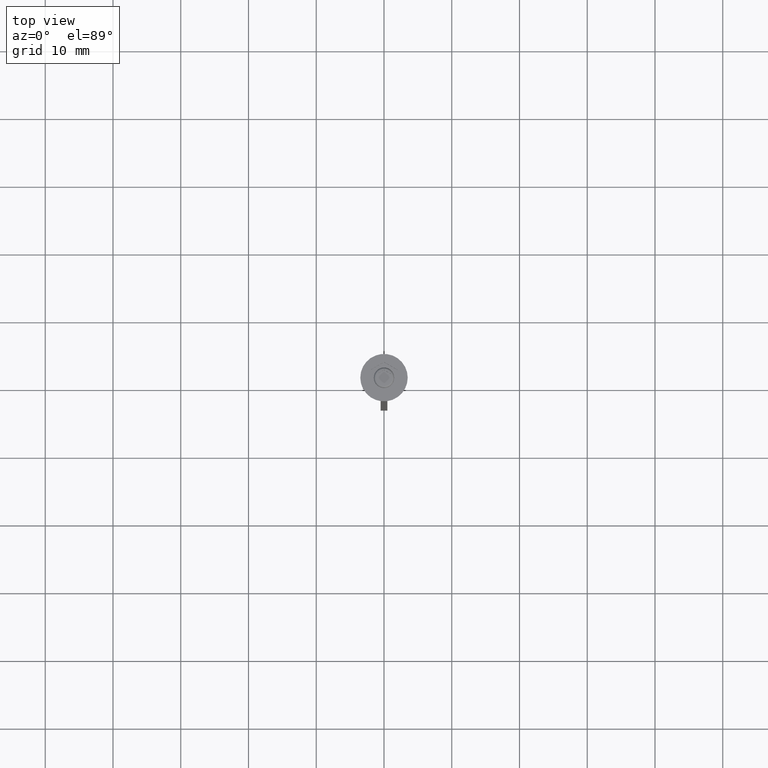
[diagram: clean part render]
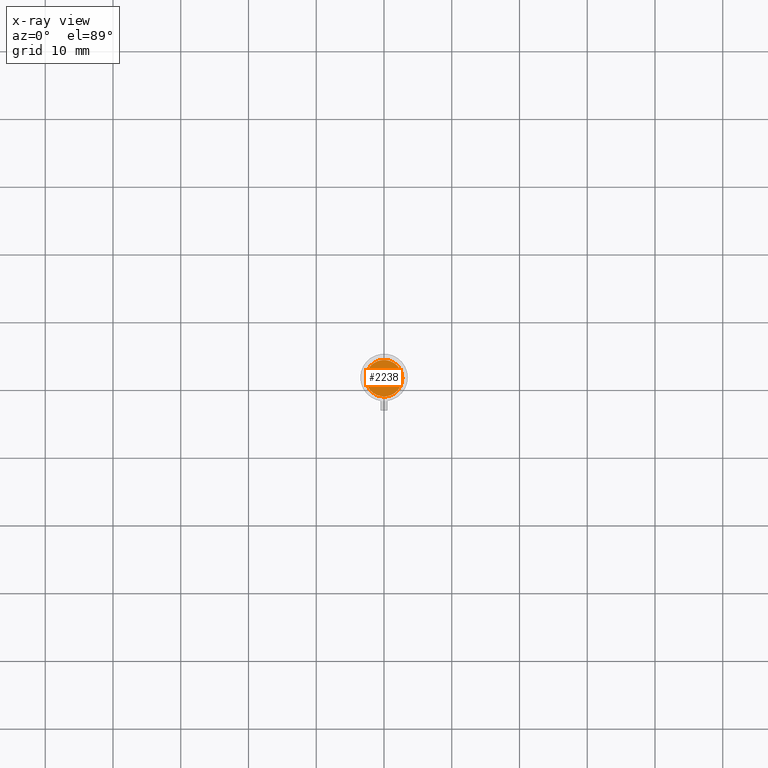
[diagram: x-ray — body ghosted, one internal face saturated and labeled with its STEP entity id]
A machine part, top view, then the same camera in x-ray: the body is ghosted and one INTERNAL B-rep face — a face not visible from any outside direction — is saturated and labeled: STEP entity #2238.
In plain terms, the highlighted planar face has unit normal (0, 0, -1).
Its self-contained STEP definition (entity closure, byte-faithful):
#356 = AXIS2_PLACEMENT_3D ( 'NONE', #655, #466, #1387 ) ;
#413 = DIRECTION ( 'NONE',  ( -1.000000000000000000, 0.000000000000000000, 0.000000000000000000 ) ) ;
#436 = EDGE_LOOP ( 'NONE', ( #1623, #694 ) ) ;
#466 = DIRECTION ( 'NONE',  ( -0.000000000000000000, -0.000000000000000000, 1.000000000000000000 ) ) ;
#544 = CIRCLE ( 'NONE', #356, 2.700000000000002398 ) ;
#607 = DIRECTION ( 'NONE',  ( 0.000000000000000000, 0.000000000000000000, -1.000000000000000000 ) ) ;
#655 = CARTESIAN_POINT ( 'NONE',  ( 0.000000000000000000, 0.000000000000000000, -5.500000000000000000 ) ) ;
#657 = VERTEX_POINT ( 'NONE', #1957 ) ;
#694 = ORIENTED_EDGE ( 'NONE', *, *, #1503, .T. ) ;
#761 = VERTEX_POINT ( 'NONE', #1296 ) ;
#1004 = CARTESIAN_POINT ( 'NONE',  ( 0.000000000000000000, 0.000000000000000000, -5.500000000000000000 ) ) ;
#1284 = CARTESIAN_POINT ( 'NONE',  ( 0.000000000000000000, 0.000000000000000000, -5.500000000000000000 ) ) ;
#1296 = CARTESIAN_POINT ( 'NONE',  ( -2.700000000000002398, 0.000000000000000000, -5.500000000000000000 ) ) ;
#1315 = DIRECTION ( 'NONE',  ( -0.000000000000000000, -0.000000000000000000, 1.000000000000000000 ) ) ;
#1318 = EDGE_CURVE ( 'NONE', #761, #657, #544, .T. ) ;
#1339 = DIRECTION ( 'NONE',  ( -1.000000000000000000, 0.000000000000000000, -0.000000000000000000 ) ) ;
#1382 = AXIS2_PLACEMENT_3D ( 'NONE', #1284, #1315, #413 ) ;
#1387 = DIRECTION ( 'NONE',  ( -1.000000000000000000, 0.000000000000000000, 0.000000000000000000 ) ) ;
#1503 = EDGE_CURVE ( 'NONE', #657, #761, #2009, .T. ) ;
#1623 = ORIENTED_EDGE ( 'NONE', *, *, #1318, .T. ) ;
#1863 = FACE_OUTER_BOUND ( 'NONE', #436, .T. ) ;
#1887 = PLANE ( 'NONE',  #2092 ) ;
#1957 = CARTESIAN_POINT ( 'NONE',  ( 2.700000000000002398, 3.490243377569959512E-16, -5.500000000000000000 ) ) ;
#2009 = CIRCLE ( 'NONE', #1382, 2.700000000000002398 ) ;
#2092 = AXIS2_PLACEMENT_3D ( 'NONE', #1004, #607, #1339 ) ;
#2238 = ADVANCED_FACE ( 'NONE', ( #1863 ), #1887, .F. ) ;